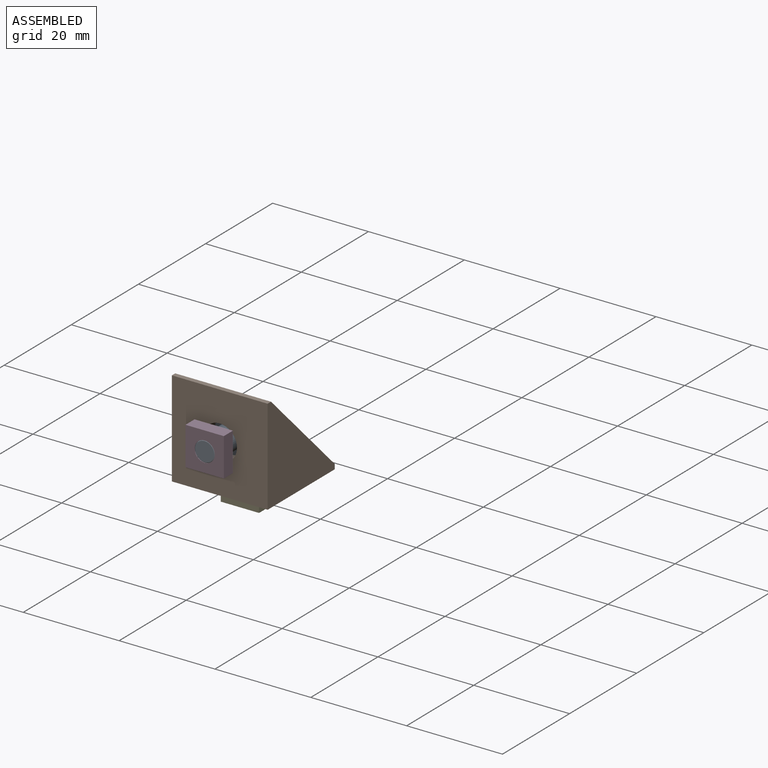
[diagram: assembled view]
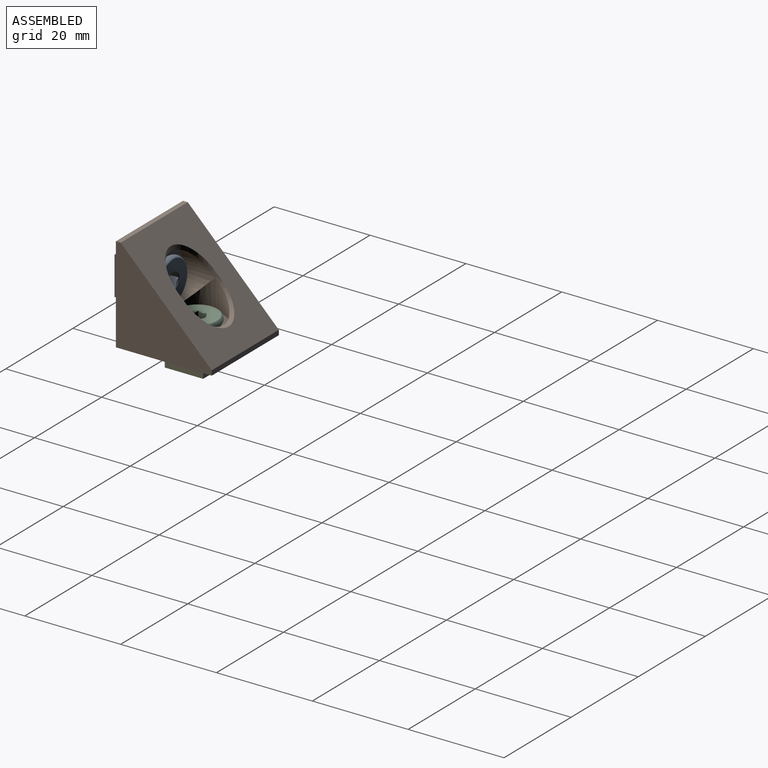
[diagram: assembled view, second angle]
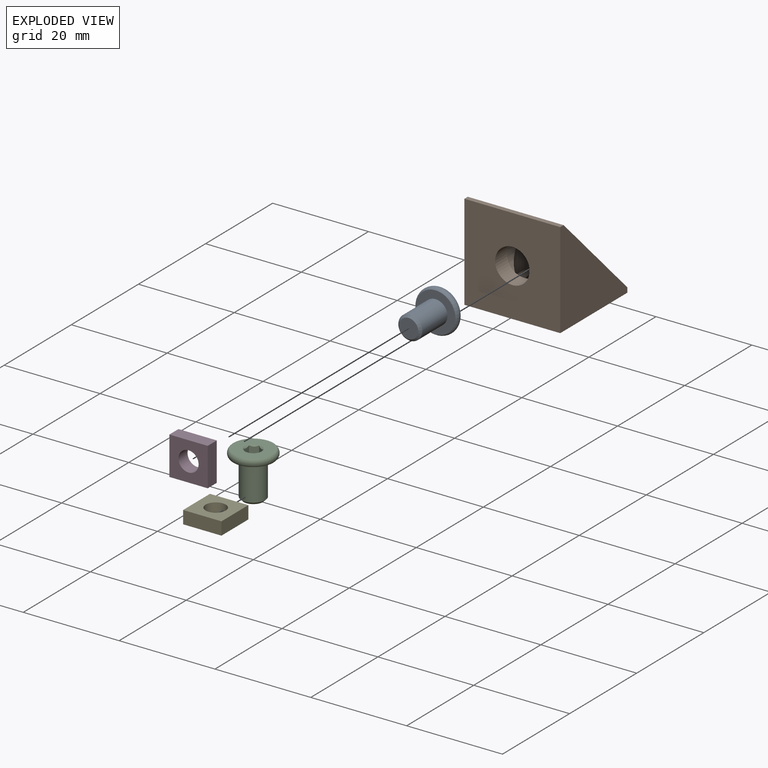
[diagram: exploded view]
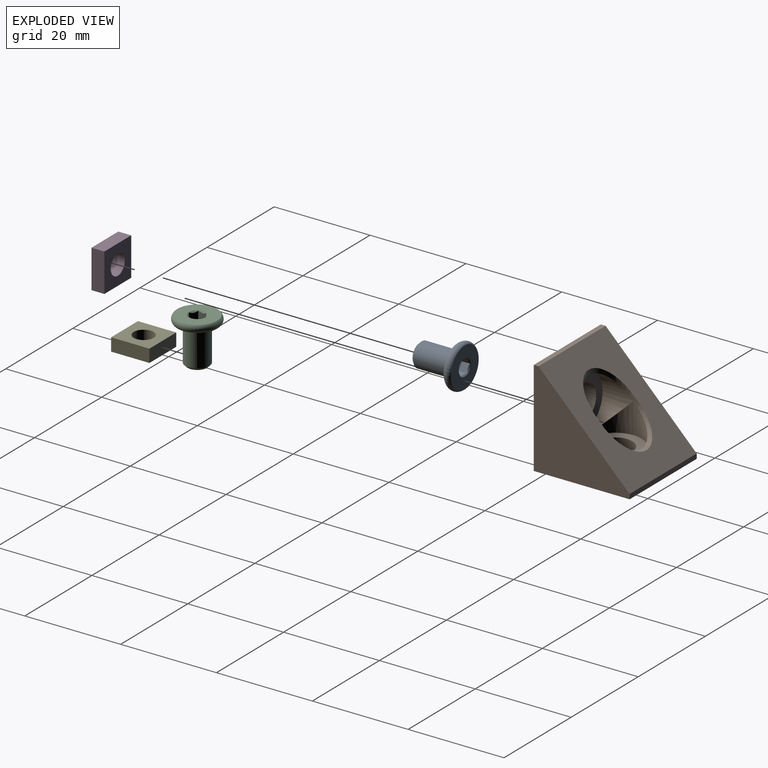
[diagram: exploded view, second angle]
ASSEMBLY  parts=5 mates=4
PART A: 14 faces, bbox 9.8x9.7x9.7 mm
  f0: cylinder r=2.5mm len=7.5mm, axis (1,0,0), area 117.8mm2, adj f2,f5
  f1: plane 4x4mm, normal (1,0,0), area 12.6mm2, adj f2
  f2: cone r=2mm half-angle=45deg, axis (-1,0,0), area 10mm2, adj f0,f1
  f3: plane 8.32x8.32mm, normal (-1,0,0), area 44.4mm2, adj f4,f6
  f4: torus R=3.5mm, axis (-1,0,0), area 46.7mm2, adj f3,f5
  f5: plane 8.32x8.32mm, normal (1,0,0), area 34.8mm2, adj f0,f4
  f6: cone r=1.78mm half-angle=45deg, axis (-1,0,0), area 3.1mm2, adj f3,f8,f9,f10,f11,f12,f13
  f7: plane 3.46x3mm, normal (-1,0,0), area 7.8mm2, adj f8,f9,f10,f11,f12,f13
  f8: plane 2.25x1.5mm, normal (0,-0.87,0.5), area 3.6mm2, adj f6,f7,f9,f13
  f9: plane 2.25x1.73mm, normal (0,0,1), area 3.6mm2, adj f6,f7,f8,f10
  f10: plane 2.25x1.5mm, normal (0,0.87,0.5), area 3.6mm2, adj f6,f7,f9,f11
  f11: plane 2.25x1.5mm, normal (0,0.87,-0.5), area 3.6mm2, adj f6,f7,f10,f12
  f12: plane 2.25x1.73mm, normal (0,0,-1), area 3.6mm2, adj f6,f7,f11,f13
  f13: plane 2.25x1.5mm, normal (0,-0.87,-0.5), area 3.6mm2, adj f6,f7,f8,f12
PART B: 15 faces, bbox 20x20x20 mm
  f0: cylinder r=5.5mm len=11mm, axis (0,0,1), area 17.8mm2, adj f12,f13,f14
  f1: cylinder r=3.6mm len=7.2mm, axis (0,1,0), area 79.2mm2, adj f6,f11
  f2: cylinder r=3.6mm len=7.2mm, axis (0,0,-1), area 79.2mm2, adj f4,f10
  f3: plane 20x1mm, normal (0,0,1), area 20mm2, adj f5,f6,f7,f14
  f4: plane 20x20mm, normal (0,0,-1), area 359.3mm2, adj f2,f5,f6,f7,f8
  f5: plane 20x20mm, normal (-1,0,0), area 219.5mm2, adj f3,f4,f6,f8,f14
  f6: plane 20x20mm, normal (0,-1,0), area 359.3mm2, adj f1,f3,f4,f5,f7
  f7: plane 20x20mm, normal (1,0,0), area 219.5mm2, adj f3,f4,f6,f8,f14
  f8: plane 20x1mm, normal (0,1,0), area 20mm2, adj f4,f5,f7,f14
  f9: cylinder r=5.5mm len=11mm, axis (0,0,1), area 103.6mm2, adj f10,f12,f13
  f10: plane 11x11mm, normal (0,0,1), area 54.3mm2, adj f2,f9
  f11: plane 11x11mm, normal (0,1,0), area 54.3mm2, adj f1,f12
  f12: cylinder r=5.5mm len=11mm, axis (0,1,0), area 103.6mm2, adj f0,f9,f11
  f13: cylinder r=5.5mm len=11mm, axis (0,1,0), area 17.8mm2, adj f0,f9,f14
  f14: plane 20x19mm, normal (0,0.71,0.71), area 387.5mm2, adj f0,f3,f5,f7,f8,f13
PART C: same geometry as A
PART D: 7 faces, bbox 8x8x2.7 mm
  f0: plane 8x2.7mm, normal (0,-1,0), area 21.6mm2, adj f1,f4,f5,f6
  f1: plane 8x2.7mm, normal (1,0,0), area 21.6mm2, adj f0,f2,f5,f6
  f2: plane 8x2.7mm, normal (0,1,0), area 21.6mm2, adj f1,f4,f5,f6
  f3: cylinder r=2.1mm len=4.2mm, axis (0,0,-1), area 35.6mm2, adj f5,f6
  f4: plane 8x2.7mm, normal (-1,0,0), area 21.6mm2, adj f0,f2,f5,f6
  f5: plane 8x8mm, normal (0,0,1), area 50.1mm2, adj f0,f1,f2,f3,f4
  f6: plane 8x8mm, normal (0,0,-1), area 50.1mm2, adj f0,f1,f2,f3,f4
PART E: same geometry as D
PLACE A rot(axis=(0,0,-1),90deg) t=(0,-21.5,0)mm
PLACE B at identity
PLACE C rot(axis=(0.71,0,-0.71),180deg) t=(0,0,-21.5)mm
PLACE D rot(axis=(-1,0,0),90deg) t=(0,-14.5,0)mm
PLACE E rot(axis=(1,0,0),180deg) t=(0,0,-11.8)mm
MATE fastened C.f4 <-> B.f0  axis (0,0,-1) through (0,0,-6.5)mm
MATE fastened A.f4 <-> B.f1  axis (0,-1,0) through (0,-6.5,0)mm
MATE fastened D.f3 <-> A.f0  axis (0,-1,0) through (0,-14.5,0)mm
MATE fastened E.f3 <-> C.f0  axis (0,0,-1) through (0,0,-14.5)mm
